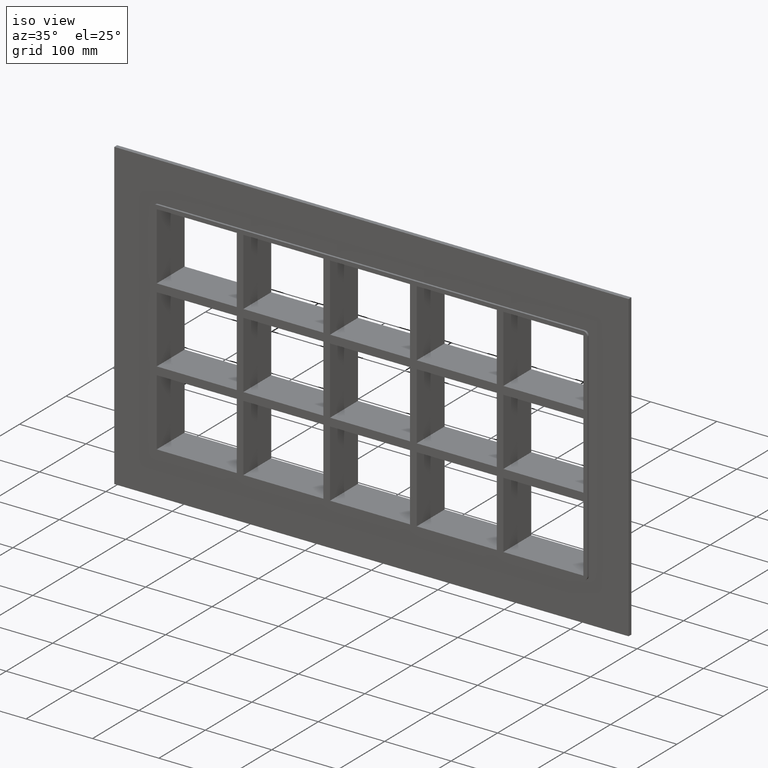
[diagram: clean part render]
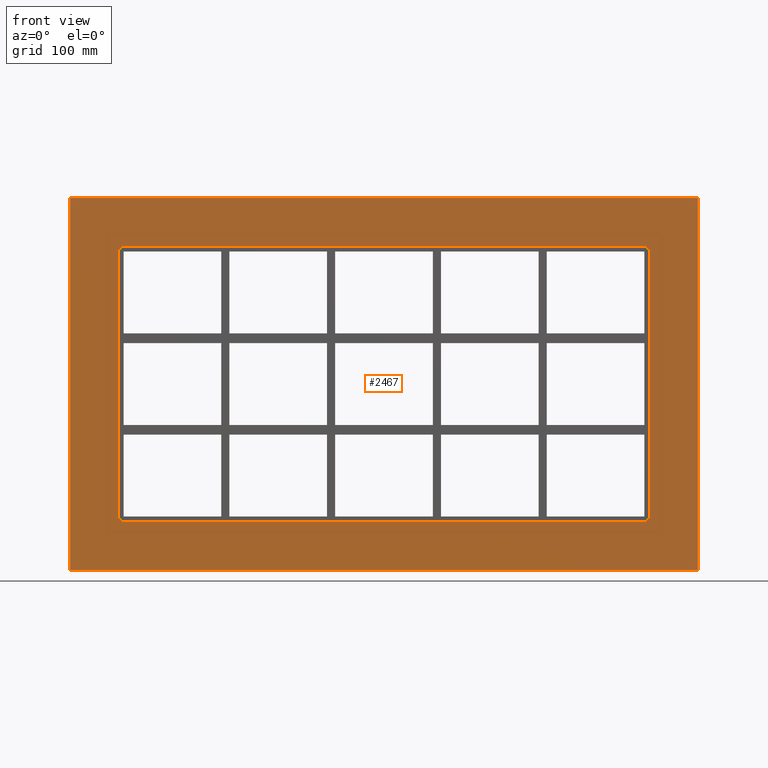
[diagram: tour spotlight — one face highlighted and labeled with its STEP entity id]
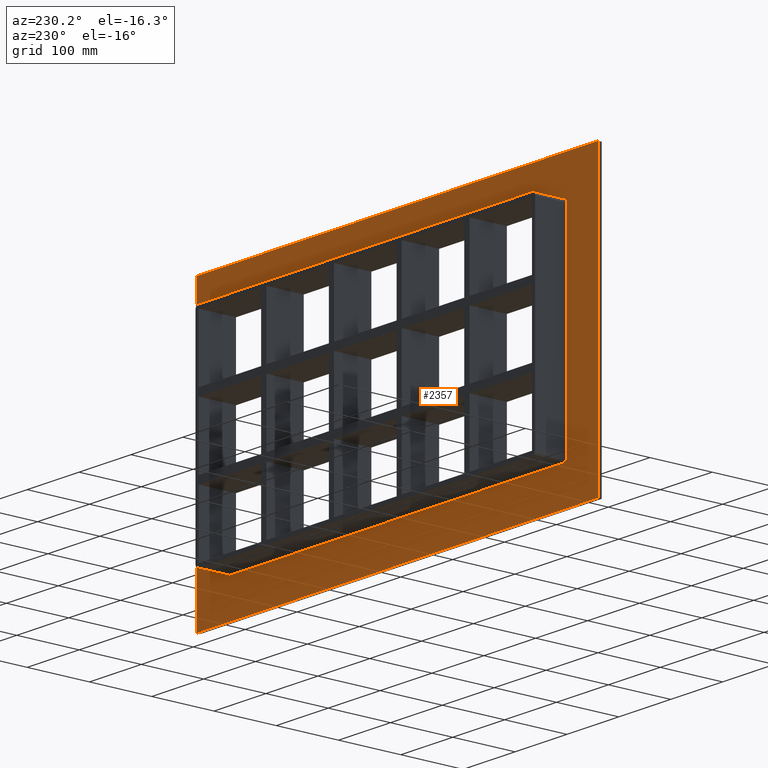
[diagram: tour spotlight — one face highlighted and labeled with its STEP entity id]
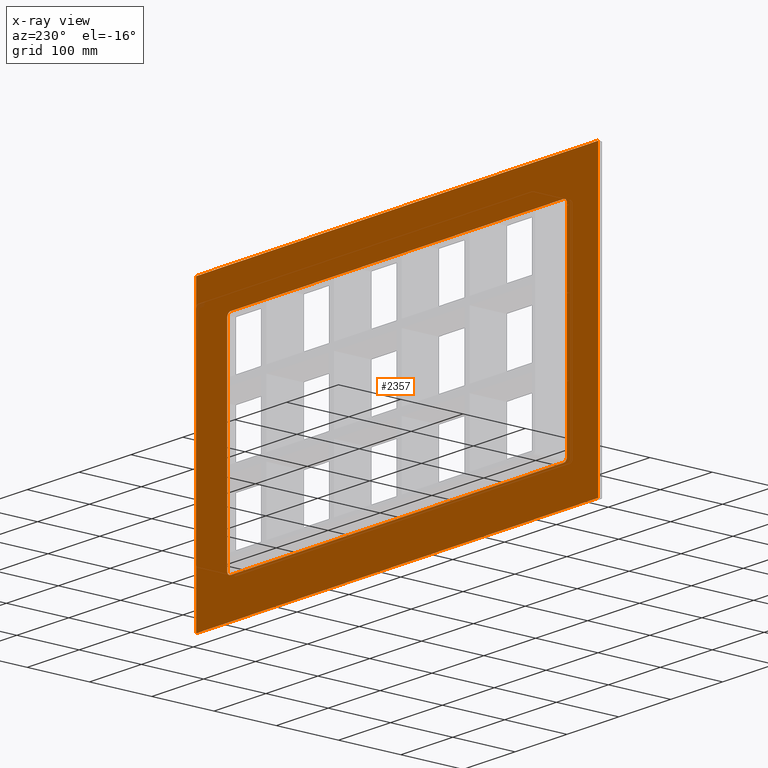
[diagram: x-ray of the same camera — body ghosted, this tour face saturated]
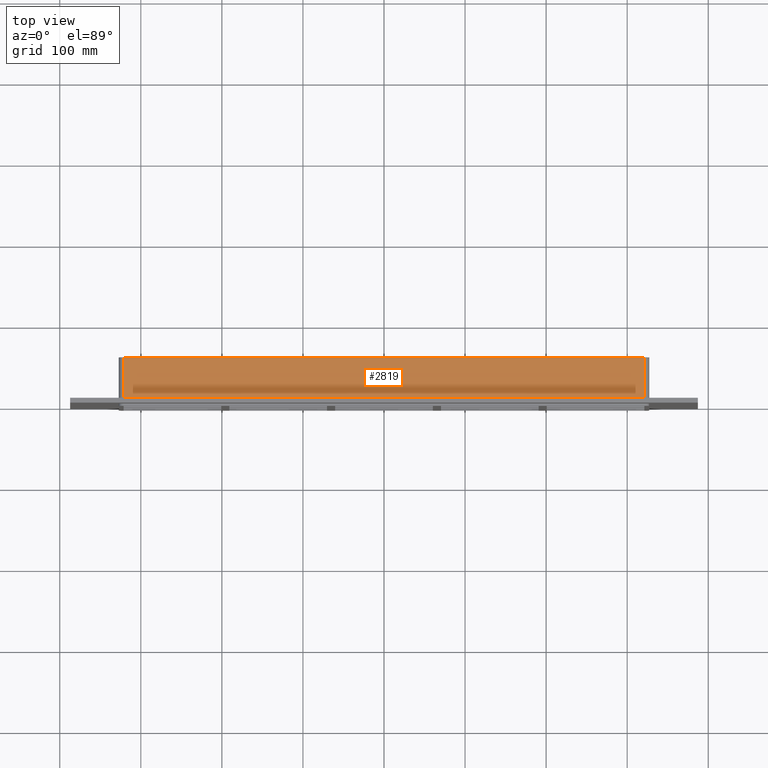
[diagram: tour spotlight — one face highlighted and labeled with its STEP entity id]
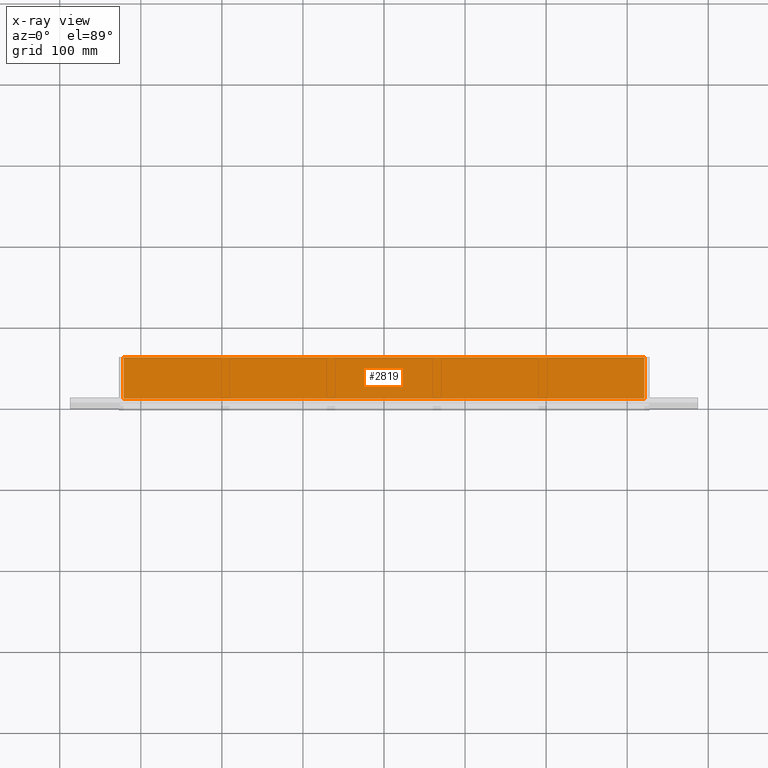
[diagram: x-ray of the same camera — body ghosted, this tour face saturated]
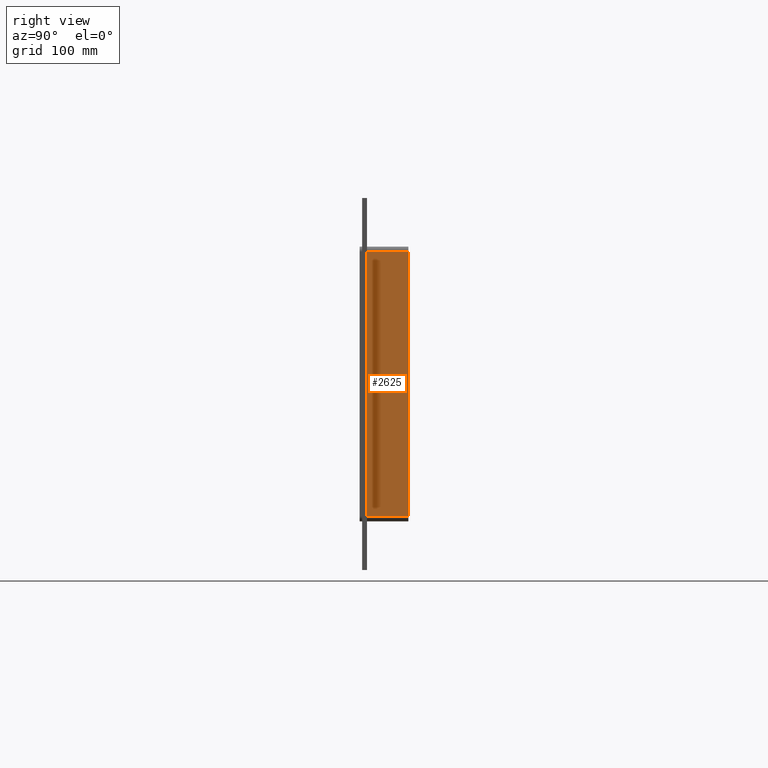
[diagram: tour spotlight — one face highlighted and labeled with its STEP entity id]
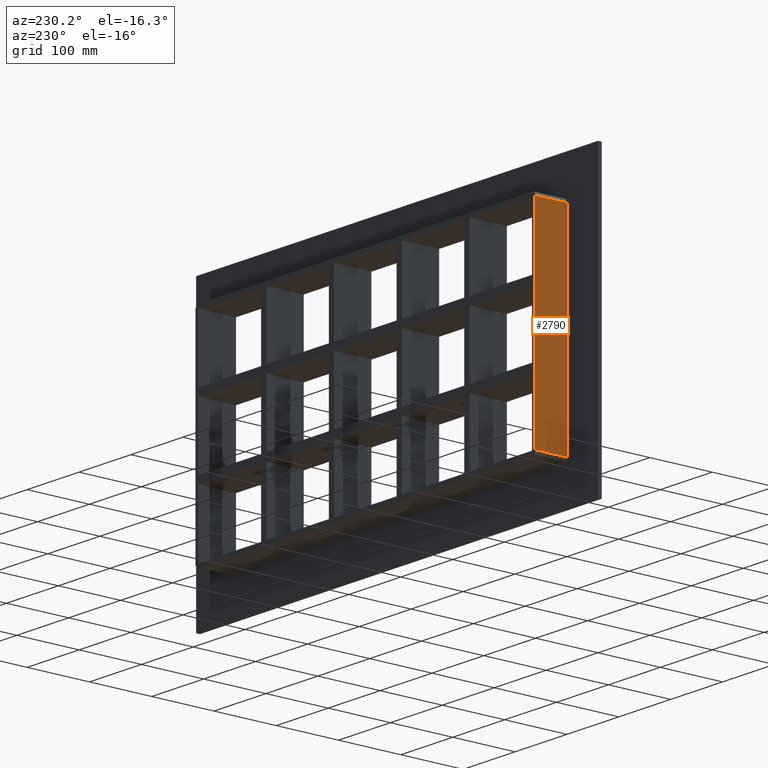
[diagram: tour spotlight — one face highlighted and labeled with its STEP entity id]
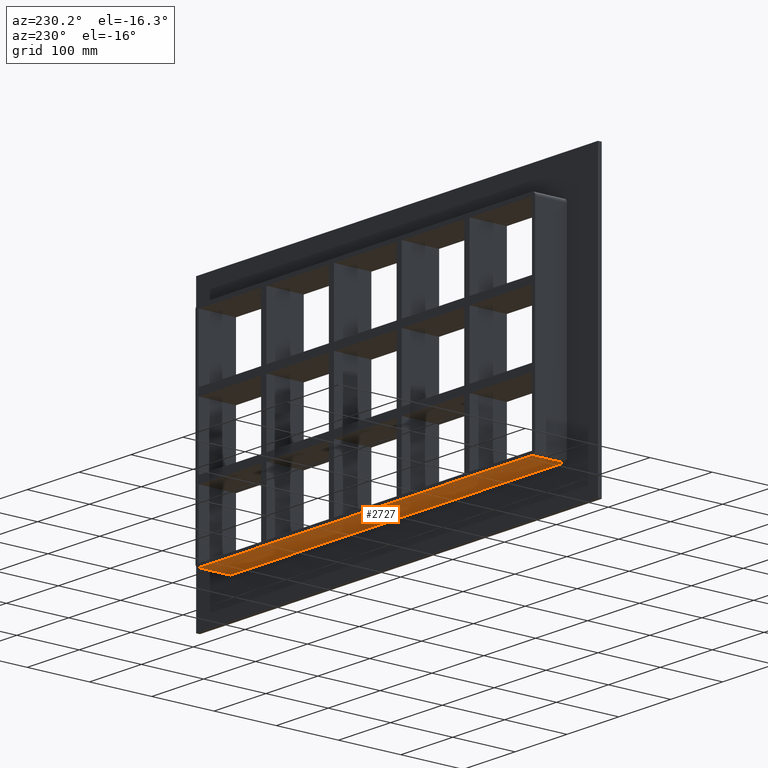
[diagram: tour spotlight — one face highlighted and labeled with its STEP entity id]
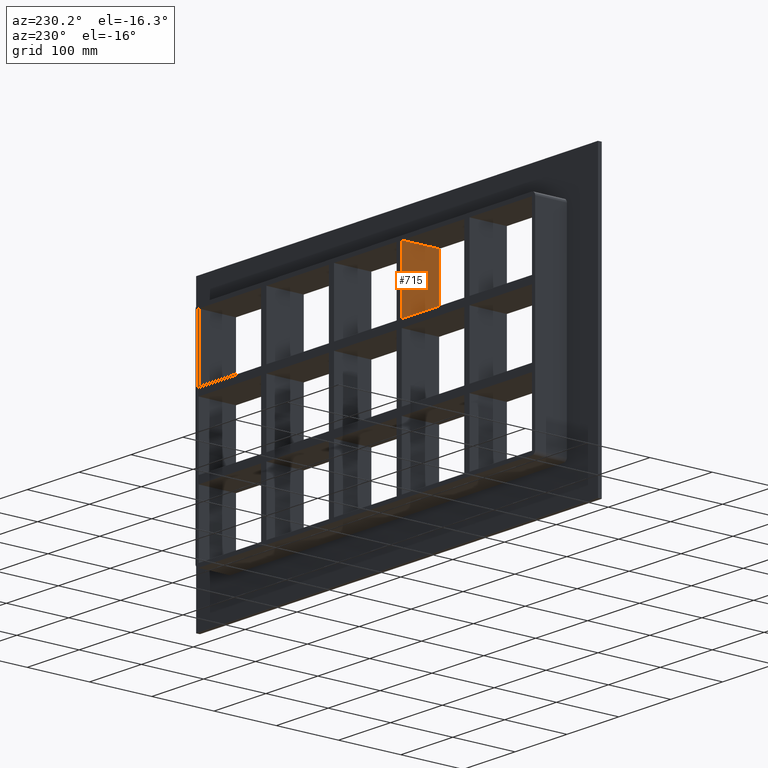
[diagram: tour spotlight — one face highlighted and labeled with its STEP entity id]
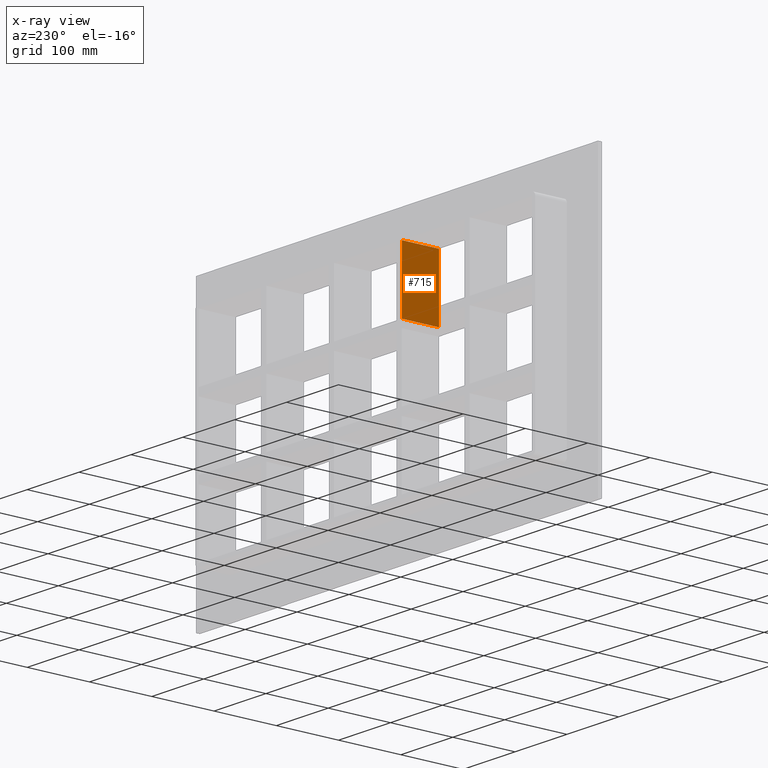
[diagram: x-ray of the same camera — body ghosted, this tour face saturated]
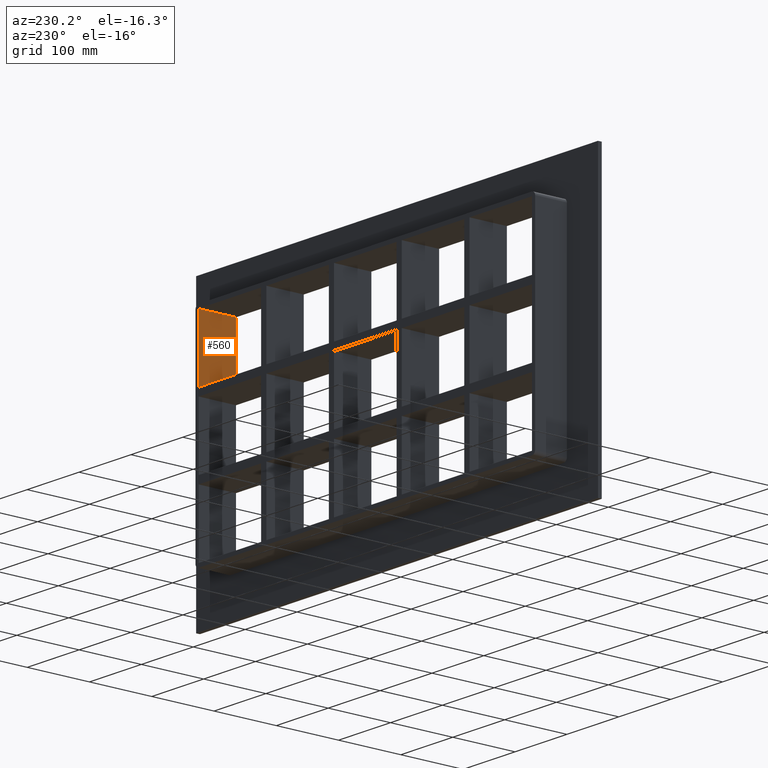
[diagram: tour spotlight — one face highlighted and labeled with its STEP entity id]
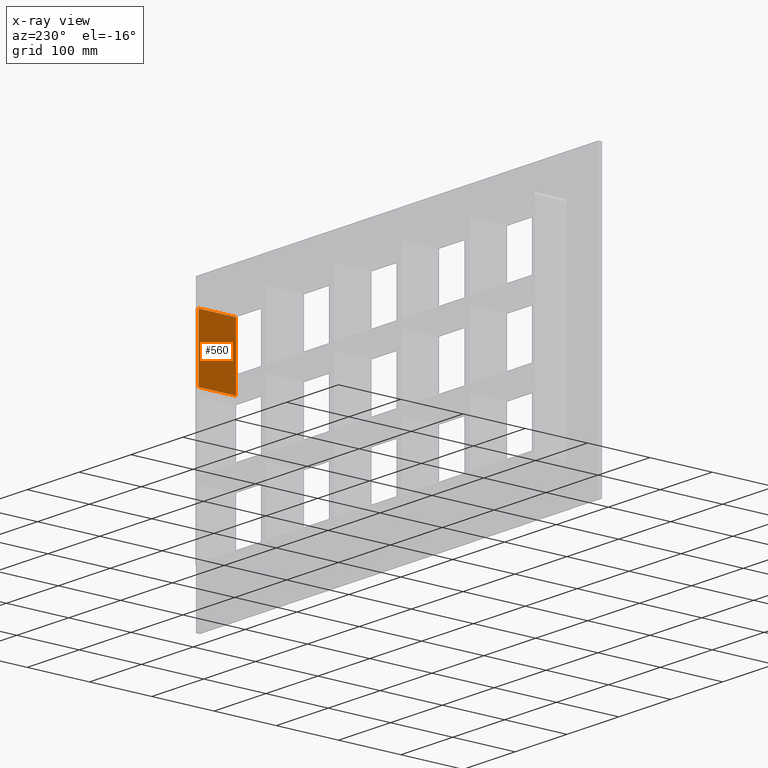
[diagram: x-ray of the same camera — body ghosted, this tour face saturated]
A machine part: a face-by-face anatomy tour. The part has 84 B-rep faces; the first image is the clean iso view, then the 8 largest visible faces are spotlighted one at a time (largest first), each with its STEP entity span.

Face 1 — front view, entity #2467. In plain terms, the highlighted planar face has unit normal (0, 1, 0).
Definition (entity closure, byte-faithful):
#2358=CARTESIAN_POINT('',(-4.147473E-014,0.0,6.610035E-015));
#2359=DIRECTION('',(0.0,1.0,0.0));
#2360=DIRECTION('',(0.0,0.0,1.0));
#2361=AXIS2_PLACEMENT_3D('',#2358,#2359,#2360);
#2362=PLANE('',#2361);
#2363=CARTESIAN_POINT('',(-387.25000000000011,0.0,229.50000000000003));
#2364=VERTEX_POINT('',#2363);
#2365=CARTESIAN_POINT('',(387.25,0.0,229.50000000000003));
#2366=VERTEX_POINT('',#2365);
#2367=CARTESIAN_POINT('',(-387.25000000000011,0.0,229.50000000000003));
#2368=DIRECTION('',(1.0,0.0,0.0));
#2369=VECTOR('',#2368,774.50000000000023);
#2370=LINE('',#2367,#2369);
#2371=EDGE_CURVE('',#2364,#2366,#2370,.T.);
#2372=ORIENTED_EDGE('',*,*,#2371,.F.);
#2373=CARTESIAN_POINT('',(-387.25000000000011,0.0,-229.5));
#2374=VERTEX_POINT('',#2373);
#2375=CARTESIAN_POINT('',(-387.25000000000011,0.0,-229.5));
#2376=DIRECTION('',(0.0,0.0,1.0));
#2377=VECTOR('',#2376,459.00000000000006);
#2378=LINE('',#2375,#2377);
#2379=EDGE_CURVE('',#2374,#2364,#2378,.T.);
#2380=ORIENTED_EDGE('',*,*,#2379,.F.);
#2381=CARTESIAN_POINT('',(387.25,0.0,-229.5));
#2382=VERTEX_POINT('',#2381);
#2383=CARTESIAN_POINT('',(387.25,0.0,-229.5));
#2384=DIRECTION('',(-1.0,0.0,0.0));
#2385=VECTOR('',#2384,774.50000000000023);
#2386=LINE('',#2383,#2385);
#2387=EDGE_CURVE('',#2382,#2374,#2386,.T.);
#2388=ORIENTED_EDGE('',*,*,#2387,.F.);
#2389=CARTESIAN_POINT('',(387.25,0.0,229.50000000000003));
#2390=DIRECTION('',(0.0,0.0,-1.0));
#2391=VECTOR('',#2390,459.00000000000006);
#2392=LINE('',#2389,#2391);
#2393=EDGE_CURVE('',#2366,#2382,#2392,.T.);
#2394=ORIENTED_EDGE('',*,*,#2393,.F.);
#2395=EDGE_LOOP('',(#2372,#2380,#2388,#2394));
#2396=FACE_OUTER_BOUND('',#2395,.T.);
#2397=CARTESIAN_POINT('',(-327.25,0.0,-163.50000000000006));
#2398=VERTEX_POINT('',#2397);
#2399=CARTESIAN_POINT('',(-321.25,0.0,-169.50000000000006));
#2400=VERTEX_POINT('',#2399);
#2401=CARTESIAN_POINT('',(-321.25,0.0,-163.50000000000006));
#2402=DIRECTION('',(0.0,-1.0,0.0));
#2403=DIRECTION('',(-0.707106781186543,0.0,-0.707106781186552));
#2404=AXIS2_PLACEMENT_3D('',#2401,#2402,#2403);
#2405=CIRCLE('',#2404,6.000000000000001);
#2406=EDGE_CURVE('',#2398,#2400,#2405,.T.);
#2407=ORIENTED_EDGE('',*,*,#2406,.F.);
#2408=CARTESIAN_POINT('',(-327.25,0.0,163.49999999999997));
#2409=VERTEX_POINT('',#2408);
#2410=CARTESIAN_POINT('',(-327.25,0.0,163.5));
#2411=DIRECTION('',(0.0,0.0,-1.0));
#2412=VECTOR('',#2411,327.00000000000006);
#2413=LINE('',#2410,#2412);
#2414=EDGE_CURVE('',#2409,#2398,#2413,.T.);
#2415=ORIENTED_EDGE('',*,*,#2414,.F.);
#2416=CARTESIAN_POINT('',(-321.25,0.0,169.5));
#2417=VERTEX_POINT('',#2416);
#2418=CARTESIAN_POINT('',(-321.25,0.0,163.49999999999997));
#2419=DIRECTION('',(0.0,-1.0,0.0));
#2420=DIRECTION('',(-0.707106781186543,0.0,0.707106781186552));
#2421=AXIS2_PLACEMENT_3D('',#2418,#2419,#2420);
#2422=CIRCLE('',#2421,6.000000000000001);
#2423=EDGE_CURVE('',#2417,#2409,#2422,.T.);
#2424=ORIENTED_EDGE('',*,*,#2423,.F.);
#2425=CARTESIAN_POINT('',(321.25,0.0,169.5));
#2426=VERTEX_POINT('',#2425);
#2427=CARTESIAN_POINT('',(321.25,0.0,169.5));
#2428=DIRECTION('',(-1.0,0.0,0.0));
#2429=VECTOR('',#2428,642.5);
#2430=LINE('',#2427,#2429);
#2431=EDGE_CURVE('',#2426,#2417,#2430,.T.);
#2432=ORIENTED_EDGE('',*,*,#2431,.F.);
#2433=CARTESIAN_POINT('',(327.25,0.0,163.49999999999997));
#2434=VERTEX_POINT('',#2433);
#2435=CARTESIAN_POINT('',(321.25,0.0,163.49999999999997));
#2436=DIRECTION('',(0.0,-1.0,0.0));
#2437=DIRECTION('',(0.707106781186543,0.0,0.707106781186552));
#2438=AXIS2_PLACEMENT_3D('',#2435,#2436,#2437);
#2439=CIRCLE('',#2438,6.000000000000001);
#2440=EDGE_CURVE('',#2434,#2426,#2439,.T.);
#2441=ORIENTED_EDGE('',*,*,#2440,.F.);
#2442=CARTESIAN_POINT('',(327.25,0.0,-163.50000000000006));
#2443=VERTEX_POINT('',#2442);
#2444=CARTESIAN_POINT('',(327.25,0.0,-163.50000000000003));
#2445=DIRECTION('',(0.0,0.0,1.0));
#2446=VECTOR('',#2445,327.0);
#2447=LINE('',#2444,#2446);
#2448=EDGE_CURVE('',#2443,#2434,#2447,.T.);
#2449=ORIENTED_EDGE('',*,*,#2448,.F.);
#2450=CARTESIAN_POINT('',(321.25,0.0,-169.50000000000006));
#2451=VERTEX_POINT('',#2450);
#2452=CARTESIAN_POINT('',(321.25,0.0,-163.50000000000006));
#2453=DIRECTION('',(0.0,-1.0,0.0));
#2454=DIRECTION('',(0.707106781186543,0.0,-0.707106781186552));
#2455=AXIS2_PLACEMENT_3D('',#2452,#2453,#2454);
#2456=CIRCLE('',#2455,6.000000000000001);
#2457=EDGE_CURVE('',#2451,#2443,#2456,.T.);
#2458=ORIENTED_EDGE('',*,*,#2457,.F.);
#2459=CARTESIAN_POINT('',(-321.25,0.0,-169.50000000000006));
#2460=DIRECTION('',(1.0,0.0,0.0));
#2461=VECTOR('',#2460,642.5);
#2462=LINE('',#2459,#2461);
#2463=EDGE_CURVE('',#2400,#2451,#2462,.T.);
#2464=ORIENTED_EDGE('',*,*,#2463,.F.);
#2465=EDGE_LOOP('',(#2407,#2415,#2424,#2432,#2441,#2449,#2458,#2464));
#2466=FACE_BOUND('',#2465,.T.);
#2467=ADVANCED_FACE('',(#2396,#2466),#2362,.F.);

Face 2 — auxiliary view, entity #2357. An x-ray twin of the same camera follows (body ghosted, this face saturated) — the face is partly hidden behind the body. In plain terms, the highlighted planar face has unit normal (0, 1, 0).
Definition (entity closure, byte-faithful):
#2248=CARTESIAN_POINT('',(-4.147473E-014,6.000000000000001,6.610035E-015));
#2249=DIRECTION('',(0.0,1.0,0.0));
#2250=DIRECTION('',(0.0,0.0,1.0));
#2251=AXIS2_PLACEMENT_3D('',#2248,#2249,#2250);
#2252=PLANE('',#2251);
#2253=CARTESIAN_POINT('',(-387.25000000000011,6.000000000000001,229.50000000000003));
#2254=VERTEX_POINT('',#2253);
#2255=CARTESIAN_POINT('',(387.25000000000011,6.000000000000001,229.50000000000003));
#2256=VERTEX_POINT('',#2255);
#2257=CARTESIAN_POINT('',(-387.25000000000011,6.000000000000001,229.50000000000003));
#2258=DIRECTION('',(1.0,0.0,0.0));
#2259=VECTOR('',#2258,774.50000000000023);
#2260=LINE('',#2257,#2259);
#2261=EDGE_CURVE('',#2254,#2256,#2260,.T.);
#2262=ORIENTED_EDGE('',*,*,#2261,.T.);
#2263=CARTESIAN_POINT('',(387.25000000000011,6.000000000000001,-229.50000000000003));
#2264=VERTEX_POINT('',#2263);
#2265=CARTESIAN_POINT('',(387.25,6.000000000000001,229.50000000000003));
#2266=DIRECTION('',(0.0,0.0,-1.0));
#2267=VECTOR('',#2266,459.00000000000006);
#2268=LINE('',#2265,#2267);
#2269=EDGE_CURVE('',#2256,#2264,#2268,.T.);
#2270=ORIENTED_EDGE('',*,*,#2269,.T.);
#2271=CARTESIAN_POINT('',(-387.25000000000011,6.000000000000001,-229.50000000000003));
#2272=VERTEX_POINT('',#2271);
#2273=CARTESIAN_POINT('',(387.25,6.000000000000001,-229.5));
#2274=DIRECTION('',(-1.0,0.0,0.0));
#2275=VECTOR('',#2274,774.50000000000023);
#2276=LINE('',#2273,#2275);
#2277=EDGE_CURVE('',#2264,#2272,#2276,.T.);
#2278=ORIENTED_EDGE('',*,*,#2277,.T.);
#2279=CARTESIAN_POINT('',(-387.25000000000011,6.000000000000001,-229.5));
#2280=DIRECTION('',(0.0,0.0,1.0));
#2281=VECTOR('',#2280,459.00000000000006);
#2282=LINE('',#2279,#2281);
#2283=EDGE_CURVE('',#2272,#2254,#2282,.T.);
#2284=ORIENTED_EDGE('',*,*,#2283,.T.);
#2285=EDGE_LOOP('',(#2262,#2270,#2278,#2284));
#2286=FACE_OUTER_BOUND('',#2285,.T.);
#2287=CARTESIAN_POINT('',(-321.25,6.000000000000001,-169.50000000000006));
#2288=VERTEX_POINT('',#2287);
#2289=CARTESIAN_POINT('',(-327.25,6.000000000000001,-163.50000000000006));
#2290=VERTEX_POINT('',#2289);
#2291=CARTESIAN_POINT('',(-321.25,6.000000000000001,-163.50000000000006));
#2292=DIRECTION('',(0.0,1.0,0.0));
#2293=DIRECTION('',(-0.707106781186543,0.0,-0.707106781186552));
#2294=AXIS2_PLACEMENT_3D('',#2291,#2292,#2293);
#2295=CIRCLE('',#2294,6.000000000000001);
#2296=EDGE_CURVE('',#2288,#2290,#2295,.T.);
#2297=ORIENTED_EDGE('',*,*,#2296,.F.);
#2298=CARTESIAN_POINT('',(321.25,6.000000000000001,-169.50000000000006));
#2299=VERTEX_POINT('',#2298);
#2300=CARTESIAN_POINT('',(321.25,6.000000000000001,-169.50000000000006));
#2301=DIRECTION('',(-1.0,0.0,0.0));
#2302=VECTOR('',#2301,642.5);
#2303=LINE('',#2300,#2302);
#2304=EDGE_CURVE('',#2299,#2288,#2303,.T.);
#2305=ORIENTED_EDGE('',*,*,#2304,.F.);
#2306=CARTESIAN_POINT('',(327.25,6.000000000000001,-163.50000000000006));
#2307=VERTEX_POINT('',#2306);
#2308=CARTESIAN_POINT('',(321.25,6.000000000000001,-163.50000000000006));
#2309=DIRECTION('',(0.0,1.0,0.0));
#2310=DIRECTION('',(0.707106781186543,0.0,-0.707106781186552));
#2311=AXIS2_PLACEMENT_3D('',#2308,#2309,#2310);
#2312=CIRCLE('',#2311,6.000000000000001);
#2313=EDGE_CURVE('',#2307,#2299,#2312,.T.);
#2314=ORIENTED_EDGE('',*,*,#2313,.F.);
#2315=CARTESIAN_POINT('',(327.25,6.000000000000001,163.49999999999997));
#2316=VERTEX_POINT('',#2315);
#2317=CARTESIAN_POINT('',(327.25,6.000000000000001,163.5));
#2318=DIRECTION('',(0.0,0.0,-1.0));
#2319=VECTOR('',#2318,327.0);
#2320=LINE('',#2317,#2319);
#2321=EDGE_CURVE('',#2316,#2307,#2320,.T.);
#2322=ORIENTED_EDGE('',*,*,#2321,.F.);
#2323=CARTESIAN_POINT('',(321.25,6.000000000000001,169.5));
#2324=VERTEX_POINT('',#2323);
#2325=CARTESIAN_POINT('',(321.25,6.000000000000001,163.49999999999997));
#2326=DIRECTION('',(0.0,1.0,0.0));
#2327=DIRECTION('',(0.707106781186543,0.0,0.707106781186552));
#2328=AXIS2_PLACEMENT_3D('',#2325,#2326,#2327);
#2329=CIRCLE('',#2328,6.000000000000001);
#2330=EDGE_CURVE('',#2324,#2316,#2329,.T.);
#2331=ORIENTED_EDGE('',*,*,#2330,.F.);
#2332=CARTESIAN_POINT('',(-321.25,6.000000000000001,169.5));
#2333=VERTEX_POINT('',#2332);
#2334=CARTESIAN_POINT('',(-321.25,6.000000000000001,169.5));
#2335=DIRECTION('',(1.0,0.0,0.0));
#2336=VECTOR('',#2335,642.5);
#2337=LINE('',#2334,#2336);
#2338=EDGE_CURVE('',#2333,#2324,#2337,.T.);
#2339=ORIENTED_EDGE('',*,*,#2338,.F.);
#2340=CARTESIAN_POINT('',(-327.25,6.000000000000001,163.49999999999997));
#2341=VERTEX_POINT('',#2340);
#2342=CARTESIAN_POINT('',(-321.25,6.000000000000001,163.49999999999997));
#2343=DIRECTION('',(0.0,1.0,0.0));
#2344=DIRECTION('',(-0.707106781186543,0.0,0.707106781186552));
#2345=AXIS2_PLACEMENT_3D('',#2342,#2343,#2344);
#2346=CIRCLE('',#2345,6.000000000000001);
#2347=EDGE_CURVE('',#2341,#2333,#2346,.T.);
#2348=ORIENTED_EDGE('',*,*,#2347,.F.);
#2349=CARTESIAN_POINT('',(-327.25,6.000000000000001,-163.50000000000006));
#2350=DIRECTION('',(0.0,0.0,1.0));
#2351=VECTOR('',#2350,327.00000000000006);
#2352=LINE('',#2349,#2351);
#2353=EDGE_CURVE('',#2290,#2341,#2352,.T.);
#2354=ORIENTED_EDGE('',*,*,#2353,.F.);
#2355=EDGE_LOOP('',(#2297,#2305,#2314,#2322,#2331,#2339,#2348,#2354));
#2356=FACE_BOUND('',#2355,.T.);
#2357=ADVANCED_FACE('',(#2286,#2356),#2252,.T.);

Face 3 — top view, entity #2819. An x-ray twin of the same camera follows (body ghosted, this face saturated) — the face is partly hidden behind the body. In plain terms, the highlighted planar face has unit normal (0, 0, 1).
Definition (entity closure, byte-faithful):
#881=CARTESIAN_POINT('',(-321.25,57.0,169.5));
#882=VERTEX_POINT('',#881);
#890=CARTESIAN_POINT('',(321.24999999999994,57.0,169.5));
#891=VERTEX_POINT('',#890);
#892=CARTESIAN_POINT('',(-321.25,57.0,169.5));
#893=DIRECTION('',(1.0,0.0,0.0));
#894=VECTOR('',#893,642.5);
#895=LINE('',#892,#894);
#896=EDGE_CURVE('',#882,#891,#895,.T.);
#2323=CARTESIAN_POINT('',(321.25,6.000000000000001,169.5));
#2324=VERTEX_POINT('',#2323);
#2332=CARTESIAN_POINT('',(-321.25,6.000000000000001,169.5));
#2333=VERTEX_POINT('',#2332);
#2334=CARTESIAN_POINT('',(-321.25,6.000000000000001,169.5));
#2335=DIRECTION('',(1.0,0.0,0.0));
#2336=VECTOR('',#2335,642.5);
#2337=LINE('',#2334,#2336);
#2338=EDGE_CURVE('',#2333,#2324,#2337,.T.);
#2583=CARTESIAN_POINT('',(321.25,57.0,169.5));
#2584=DIRECTION('',(0.0,-1.0,0.0));
#2585=VECTOR('',#2584,51.0);
#2586=LINE('',#2583,#2585);
#2587=EDGE_CURVE('',#891,#2324,#2586,.T.);
#2797=CARTESIAN_POINT('',(-321.25,6.000000000000001,169.5));
#2798=DIRECTION('',(0.0,1.0,0.0));
#2799=VECTOR('',#2798,51.0);
#2800=LINE('',#2797,#2799);
#2801=EDGE_CURVE('',#2333,#882,#2800,.T.);
#2808=CARTESIAN_POINT('',(-327.25,0.0,169.5));
#2809=DIRECTION('',(0.0,0.0,1.0));
#2810=DIRECTION('',(1.0,0.0,0.0));
#2811=AXIS2_PLACEMENT_3D('',#2808,#2809,#2810);
#2812=PLANE('',#2811);
#2813=ORIENTED_EDGE('',*,*,#2338,.T.);
#2814=ORIENTED_EDGE('',*,*,#2587,.F.);
#2815=ORIENTED_EDGE('',*,*,#896,.F.);
#2816=ORIENTED_EDGE('',*,*,#2801,.F.);
#2817=EDGE_LOOP('',(#2813,#2814,#2815,#2816));
#2818=FACE_OUTER_BOUND('',#2817,.T.);
#2819=ADVANCED_FACE('',(#2818),#2812,.T.);

Face 4 — right view, entity #2625. In plain terms, the highlighted planar face has unit normal (1, 0, 0).
Definition (entity closure, byte-faithful):
#847=CARTESIAN_POINT('',(327.25,57.0,-163.50000000000006));
#848=VERTEX_POINT('',#847);
#898=CARTESIAN_POINT('',(327.25,57.0,163.49999999999997));
#899=VERTEX_POINT('',#898);
#907=CARTESIAN_POINT('',(327.25,57.0,163.5));
#908=DIRECTION('',(0.0,0.0,-1.0));
#909=VECTOR('',#908,327.00000000000006);
#910=LINE('',#907,#909);
#911=EDGE_CURVE('',#899,#848,#910,.T.);
#2306=CARTESIAN_POINT('',(327.25,6.000000000000001,-163.50000000000006));
#2307=VERTEX_POINT('',#2306);
#2315=CARTESIAN_POINT('',(327.25,6.000000000000001,163.49999999999997));
#2316=VERTEX_POINT('',#2315);
#2317=CARTESIAN_POINT('',(327.25,6.000000000000001,163.5));
#2318=DIRECTION('',(0.0,0.0,-1.0));
#2319=VECTOR('',#2318,327.0);
#2320=LINE('',#2317,#2319);
#2321=EDGE_CURVE('',#2316,#2307,#2320,.T.);
#2576=CARTESIAN_POINT('',(327.25,6.000000000000001,163.49999999999997));
#2577=DIRECTION('',(0.0,1.0,0.0));
#2578=VECTOR('',#2577,51.0);
#2579=LINE('',#2576,#2578);
#2580=EDGE_CURVE('',#2316,#899,#2579,.T.);
#2609=CARTESIAN_POINT('',(327.25,0.0,169.5));
#2610=DIRECTION('',(1.0,0.0,0.0));
#2611=DIRECTION('',(0.0,0.0,-1.0));
#2612=AXIS2_PLACEMENT_3D('',#2609,#2610,#2611);
#2613=PLANE('',#2612);
#2614=ORIENTED_EDGE('',*,*,#2321,.T.);
#2615=CARTESIAN_POINT('',(327.25,57.0,-163.50000000000006));
#2616=DIRECTION('',(0.0,-1.0,0.0));
#2617=VECTOR('',#2616,51.0);
#2618=LINE('',#2615,#2617);
#2619=EDGE_CURVE('',#848,#2307,#2618,.T.);
#2620=ORIENTED_EDGE('',*,*,#2619,.F.);
#2621=ORIENTED_EDGE('',*,*,#911,.F.);
#2622=ORIENTED_EDGE('',*,*,#2580,.F.);
#2623=EDGE_LOOP('',(#2614,#2620,#2621,#2622));
#2624=FACE_OUTER_BOUND('',#2623,.T.);
#2625=ADVANCED_FACE('',(#2624),#2613,.T.);

Face 5 — auxiliary view, entity #2790. In plain terms, the highlighted planar face has unit normal (-1, 0, 0).
Definition (entity closure, byte-faithful):
#864=CARTESIAN_POINT('',(-327.25,57.0,-163.50000000000006));
#865=VERTEX_POINT('',#864);
#873=CARTESIAN_POINT('',(-327.25,57.0,163.49999999999997));
#874=VERTEX_POINT('',#873);
#875=CARTESIAN_POINT('',(-327.25,57.0,-163.50000000000006));
#876=DIRECTION('',(0.0,0.0,1.0));
#877=VECTOR('',#876,327.00000000000006);
#878=LINE('',#875,#877);
#879=EDGE_CURVE('',#865,#874,#878,.T.);
#2289=CARTESIAN_POINT('',(-327.25,6.000000000000001,-163.50000000000006));
#2290=VERTEX_POINT('',#2289);
#2340=CARTESIAN_POINT('',(-327.25,6.000000000000001,163.49999999999997));
#2341=VERTEX_POINT('',#2340);
#2349=CARTESIAN_POINT('',(-327.25,6.000000000000001,-163.50000000000006));
#2350=DIRECTION('',(0.0,0.0,1.0));
#2351=VECTOR('',#2350,327.00000000000006);
#2352=LINE('',#2349,#2351);
#2353=EDGE_CURVE('',#2290,#2341,#2352,.T.);
#2763=CARTESIAN_POINT('',(-327.25,6.000000000000001,-163.50000000000006));
#2764=DIRECTION('',(0.0,1.0,0.0));
#2765=VECTOR('',#2764,51.0);
#2766=LINE('',#2763,#2765);
#2767=EDGE_CURVE('',#2290,#865,#2766,.T.);
#2774=CARTESIAN_POINT('',(-327.25,0.0,-169.50000000000006));
#2775=DIRECTION('',(-1.0,0.0,0.0));
#2776=DIRECTION('',(0.0,0.0,1.0));
#2777=AXIS2_PLACEMENT_3D('',#2774,#2775,#2776);
#2778=PLANE('',#2777);
#2779=ORIENTED_EDGE('',*,*,#2353,.T.);
#2780=CARTESIAN_POINT('',(-327.25,57.0,163.49999999999997));
#2781=DIRECTION('',(0.0,-1.0,0.0));
#2782=VECTOR('',#2781,51.0);
#2783=LINE('',#2780,#2782);
#2784=EDGE_CURVE('',#874,#2341,#2783,.T.);
#2785=ORIENTED_EDGE('',*,*,#2784,.F.);
#2786=ORIENTED_EDGE('',*,*,#879,.F.);
#2787=ORIENTED_EDGE('',*,*,#2767,.F.);
#2788=EDGE_LOOP('',(#2779,#2785,#2786,#2787));
#2789=FACE_OUTER_BOUND('',#2788,.T.);
#2790=ADVANCED_FACE('',(#2789),#2778,.T.);

Face 6 — auxiliary view, entity #2727. In plain terms, the highlighted planar face has unit normal (0, 0, -1).
Definition (entity closure, byte-faithful):
#845=CARTESIAN_POINT('',(321.25,57.0,-169.50000000000006));
#846=VERTEX_POINT('',#845);
#856=CARTESIAN_POINT('',(-321.24999999999994,57.0,-169.50000000000006));
#857=VERTEX_POINT('',#856);
#858=CARTESIAN_POINT('',(321.25,57.0,-169.50000000000006));
#859=DIRECTION('',(-1.0,0.0,0.0));
#860=VECTOR('',#859,642.5);
#861=LINE('',#858,#860);
#862=EDGE_CURVE('',#846,#857,#861,.T.);
#2287=CARTESIAN_POINT('',(-321.25,6.000000000000001,-169.50000000000006));
#2288=VERTEX_POINT('',#2287);
#2298=CARTESIAN_POINT('',(321.25,6.000000000000001,-169.50000000000006));
#2299=VERTEX_POINT('',#2298);
#2300=CARTESIAN_POINT('',(321.25,6.000000000000001,-169.50000000000006));
#2301=DIRECTION('',(-1.0,0.0,0.0));
#2302=VECTOR('',#2301,642.5);
#2303=LINE('',#2300,#2302);
#2304=EDGE_CURVE('',#2299,#2288,#2303,.T.);
#2666=CARTESIAN_POINT('',(321.25,6.000000000000001,-169.50000000000006));
#2667=DIRECTION('',(0.0,1.0,0.0));
#2668=VECTOR('',#2667,51.0);
#2669=LINE('',#2666,#2668);
#2670=EDGE_CURVE('',#2299,#846,#2669,.T.);
#2711=CARTESIAN_POINT('',(327.25,0.0,-169.50000000000006));
#2712=DIRECTION('',(0.0,0.0,-1.0));
#2713=DIRECTION('',(-1.0,0.0,0.0));
#2714=AXIS2_PLACEMENT_3D('',#2711,#2712,#2713);
#2715=PLANE('',#2714);
#2716=ORIENTED_EDGE('',*,*,#2304,.T.);
#2717=CARTESIAN_POINT('',(-321.25,57.0,-169.50000000000006));
#2718=DIRECTION('',(0.0,-1.0,0.0));
#2719=VECTOR('',#2718,51.0);
#2720=LINE('',#2717,#2719);
#2721=EDGE_CURVE('',#857,#2288,#2720,.T.);
#2722=ORIENTED_EDGE('',*,*,#2721,.F.);
#2723=ORIENTED_EDGE('',*,*,#862,.F.);
#2724=ORIENTED_EDGE('',*,*,#2670,.F.);
#2725=EDGE_LOOP('',(#2716,#2722,#2723,#2724));
#2726=FACE_OUTER_BOUND('',#2725,.T.);
#2727=ADVANCED_FACE('',(#2726),#2715,.T.);

Face 7 — auxiliary view, entity #715. An x-ray twin of the same camera follows (body ghosted, this face saturated) — the face is partly hidden behind the body. In plain terms, the highlighted planar face has unit normal (-1, 0, 0).
Definition (entity closure, byte-faithful):
#353=CARTESIAN_POINT('',(-70.250000000001336,57.0,62.499999999999893));
#354=VERTEX_POINT('',#353);
#355=CARTESIAN_POINT('',(-70.250000000001336,-3.0,62.499999999999893));
#356=VERTEX_POINT('',#355);
#357=CARTESIAN_POINT('',(-70.25000000000135,57.0,62.499999999999893));
#358=DIRECTION('',(0.0,-1.0,0.0));
#359=VECTOR('',#358,60.0);
#360=LINE('',#357,#359);
#361=EDGE_CURVE('',#354,#356,#360,.T.);
#685=CARTESIAN_POINT('',(-70.250000000001307,-3.0,-163.5));
#686=DIRECTION('',(-1.0,0.0,0.0));
#687=DIRECTION('',(0.0,0.0,1.0));
#688=AXIS2_PLACEMENT_3D('',#685,#686,#687);
#689=PLANE('',#688);
#690=ORIENTED_EDGE('',*,*,#361,.T.);
#691=CARTESIAN_POINT('',(-70.250000000001364,-3.0,163.5));
#692=VERTEX_POINT('',#691);
#693=CARTESIAN_POINT('',(-70.25000000000135,-3.0,62.499999999999915));
#694=DIRECTION('',(0.0,0.0,1.0));
#695=VECTOR('',#694,101.00000000000009);
#696=LINE('',#693,#695);
#697=EDGE_CURVE('',#356,#692,#696,.T.);
#698=ORIENTED_EDGE('',*,*,#697,.T.);
#699=CARTESIAN_POINT('',(-70.250000000001364,57.0,163.5));
#700=VERTEX_POINT('',#699);
#701=CARTESIAN_POINT('',(-70.250000000001393,57.000000000000007,163.5));
#702=DIRECTION('',(0.0,-1.0,0.0));
#703=VECTOR('',#702,60.000000000000007);
#704=LINE('',#701,#703);
#705=EDGE_CURVE('',#700,#692,#704,.T.);
#706=ORIENTED_EDGE('',*,*,#705,.F.);
#707=CARTESIAN_POINT('',(-70.25000000000135,57.0,62.499999999999915));
#708=DIRECTION('',(0.0,0.0,1.0));
#709=VECTOR('',#708,101.00000000000009);
#710=LINE('',#707,#709);
#711=EDGE_CURVE('',#354,#700,#710,.T.);
#712=ORIENTED_EDGE('',*,*,#711,.F.);
#713=EDGE_LOOP('',(#690,#698,#706,#712));
#714=FACE_OUTER_BOUND('',#713,.T.);
#715=ADVANCED_FACE('',(#714),#689,.T.);

Face 8 — auxiliary view, entity #560. An x-ray twin of the same camera follows (body ghosted, this face saturated) — the face is partly hidden behind the body. In plain terms, the highlighted planar face has unit normal (1, 0, 0).
Definition (entity closure, byte-faithful):
#323=CARTESIAN_POINT('',(321.24999999999994,-3.0,62.499999999999893));
#324=VERTEX_POINT('',#323);
#331=CARTESIAN_POINT('',(321.25,57.0,62.499999999999893));
#332=VERTEX_POINT('',#331);
#333=CARTESIAN_POINT('',(321.25,57.000000000000007,62.499999999999893));
#334=DIRECTION('',(0.0,-1.0,0.0));
#335=VECTOR('',#334,60.000000000000007);
#336=LINE('',#333,#335);
#337=EDGE_CURVE('',#332,#324,#336,.T.);
#530=CARTESIAN_POINT('',(321.25,0.0,163.5));
#531=DIRECTION('',(1.0,0.0,0.0));
#532=DIRECTION('',(0.0,0.0,-1.0));
#533=AXIS2_PLACEMENT_3D('',#530,#531,#532);
#534=PLANE('',#533);
#535=ORIENTED_EDGE('',*,*,#337,.T.);
#536=CARTESIAN_POINT('',(321.25,-3.0,163.5));
#537=VERTEX_POINT('',#536);
#538=CARTESIAN_POINT('',(321.25,-3.0,163.5));
#539=DIRECTION('',(0.0,0.0,-1.0));
#540=VECTOR('',#539,101.00000000000011);
#541=LINE('',#538,#540);
#542=EDGE_CURVE('',#537,#324,#541,.T.);
#543=ORIENTED_EDGE('',*,*,#542,.F.);
#544=CARTESIAN_POINT('',(321.25,57.0,163.5));
#545=VERTEX_POINT('',#544);
#546=CARTESIAN_POINT('',(321.25,-3.0,163.5));
#547=DIRECTION('',(0.0,1.0,0.0));
#548=VECTOR('',#547,60.0);
#549=LINE('',#546,#548);
#550=EDGE_CURVE('',#537,#545,#549,.T.);
#551=ORIENTED_EDGE('',*,*,#550,.T.);
#552=CARTESIAN_POINT('',(321.25,57.0,62.499999999999886));
#553=DIRECTION('',(0.0,0.0,1.0));
#554=VECTOR('',#553,101.00000000000011);
#555=LINE('',#552,#554);
#556=EDGE_CURVE('',#332,#545,#555,.T.);
#557=ORIENTED_EDGE('',*,*,#556,.F.);
#558=EDGE_LOOP('',(#535,#543,#551,#557));
#559=FACE_OUTER_BOUND('',#558,.T.);
#560=ADVANCED_FACE('',(#559),#534,.F.);